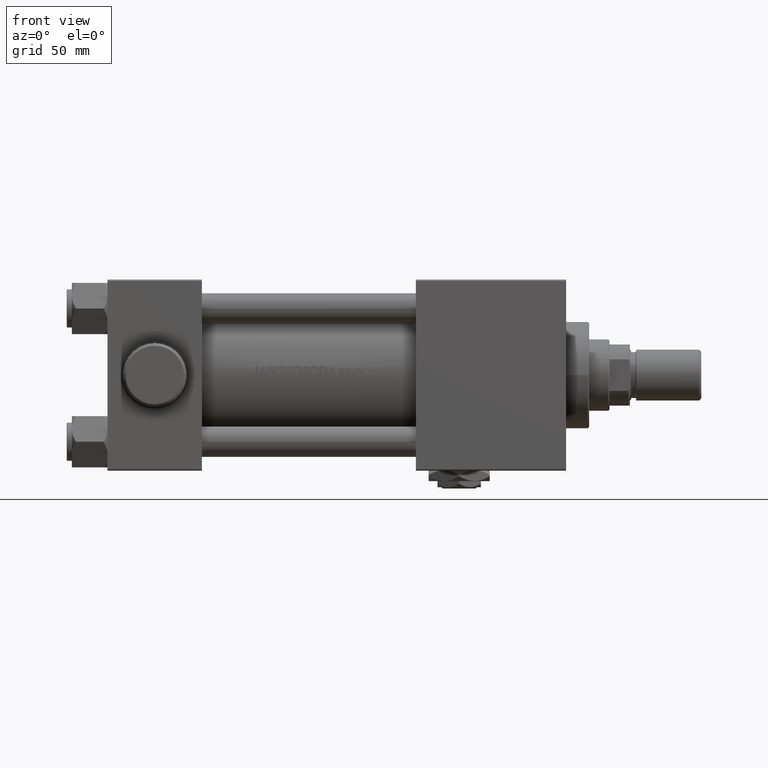
[diagram: clean part render]
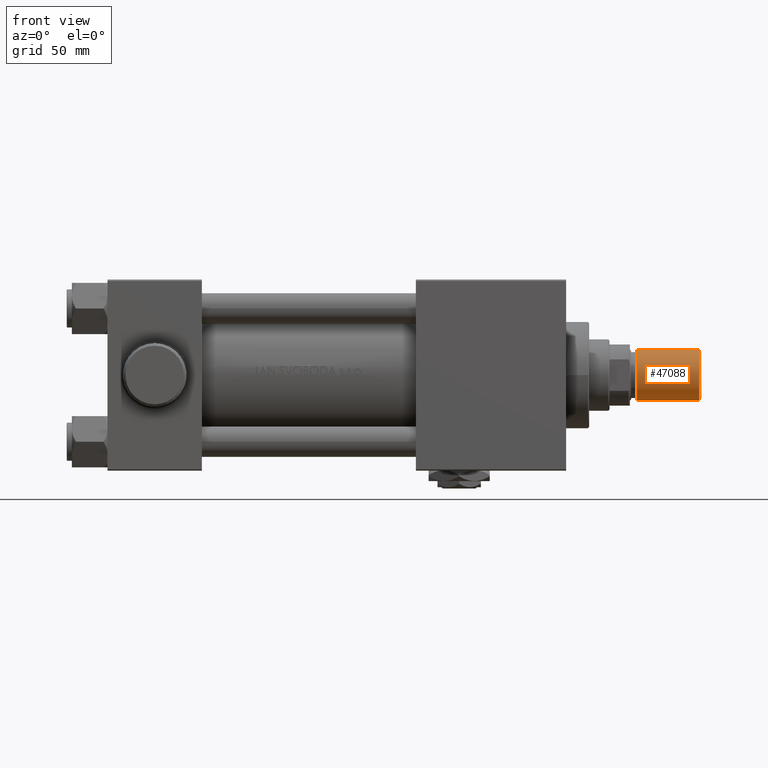
[diagram: same view with one face highlighted and labeled with its STEP entity id]
A machine part, front view. The second image highlights one B-rep face of the part: STEP entity #47088.
In plain terms, the highlighted cylindrical surface (edge-blend (fillet) strip) has radius 10 mm, axis along (1, -0, -0).
Its self-contained STEP definition (entity closure, byte-faithful):
#1362 = VERTEX_POINT ( 'NONE', #15504 ) ;
#1765 = EDGE_CURVE ( 'NONE', #46647, #27118, #47033, .T. ) ;
#3174 = DIRECTION ( 'NONE',  ( -0.000000000000000000, -0.000000000000000000, -1.000000000000000000 ) ) ;
#3437 = AXIS2_PLACEMENT_3D ( 'NONE', #9195, #4523, #12414 ) ;
#4523 = DIRECTION ( 'NONE',  ( -0.000000000000000000, -0.000000000000000000, -1.000000000000000000 ) ) ;
#8237 = CYLINDRICAL_SURFACE ( 'NONE', #3437, 10.00000000000000000 ) ;
#8248 = DIRECTION ( 'NONE',  ( 1.000000000000000000, 0.000000000000000000, 0.000000000000000000 ) ) ;
#9195 = CARTESIAN_POINT ( 'NONE',  ( 0.000000000000000000, 0.000000000000000000, 25.50000000000000000 ) ) ;
#11066 = ORIENTED_EDGE ( 'NONE', *, *, #29706, .T. ) ;
#12414 = DIRECTION ( 'NONE',  ( -1.000000000000000000, 0.000000000000000000, 0.000000000000000000 ) ) ;
#12503 = VECTOR ( 'NONE', #3174, 1000.000000000000000 ) ;
#12746 = ORIENTED_EDGE ( 'NONE', *, *, #43562, .T. ) ;
#13419 = CARTESIAN_POINT ( 'NONE',  ( 0.000000000000000000, 0.000000000000000000, 0.8000000000000055955 ) ) ;
#15504 = CARTESIAN_POINT ( 'NONE',  ( -10.00000000000000000, 0.000000000000000000, 0.8000000000000055955 ) ) ;
#15758 = ORIENTED_EDGE ( 'NONE', *, *, #38856, .F. ) ;
#20103 = FACE_OUTER_BOUND ( 'NONE', #29153, .T. ) ;
#21535 = AXIS2_PLACEMENT_3D ( 'NONE', #13419, #35989, #25813 ) ;
#22549 = AXIS2_PLACEMENT_3D ( 'NONE', #48880, #26356, #8248 ) ;
#24345 = CARTESIAN_POINT ( 'NONE',  ( 10.00000000000000000, 1.224646799147353256E-15, 25.50000000000000000 ) ) ;
#25813 = DIRECTION ( 'NONE',  ( 1.000000000000000000, 0.000000000000000000, 0.000000000000000000 ) ) ;
#26262 = VECTOR ( 'NONE', #42875, 1000.000000000000000 ) ;
#26356 = DIRECTION ( 'NONE',  ( 0.000000000000000000, 0.000000000000000000, 1.000000000000000000 ) ) ;
#27118 = VERTEX_POINT ( 'NONE', #24345 ) ;
#27764 = CARTESIAN_POINT ( 'NONE',  ( 10.00000000000000000, 1.224646799147353256E-15, 25.50000000000000000 ) ) ;
#28249 = LINE ( 'NONE', #27764, #26262 ) ;
#29153 = EDGE_LOOP ( 'NONE', ( #15758, #45319, #11066, #12746 ) ) ;
#29706 = EDGE_CURVE ( 'NONE', #46647, #1362, #40348, .T. ) ;
#31015 = CIRCLE ( 'NONE', #21535, 10.00000000000000000 ) ;
#31649 = VERTEX_POINT ( 'NONE', #36646 ) ;
#35989 = DIRECTION ( 'NONE',  ( -0.000000000000000000, -0.000000000000000000, 1.000000000000000000 ) ) ;
#36646 = CARTESIAN_POINT ( 'NONE',  ( 10.00000000000000000, 1.224646799147353256E-15, 0.8000000000000055955 ) ) ;
#37345 = CARTESIAN_POINT ( 'NONE',  ( -10.00000000000000000, 0.000000000000000000, 25.50000000000000000 ) ) ;
#38856 = EDGE_CURVE ( 'NONE', #27118, #31649, #28249, .T. ) ;
#40348 = LINE ( 'NONE', #41088, #12503 ) ;
#41088 = CARTESIAN_POINT ( 'NONE',  ( -10.00000000000000000, 0.000000000000000000, 25.50000000000000000 ) ) ;
#42875 = DIRECTION ( 'NONE',  ( -0.000000000000000000, -0.000000000000000000, -1.000000000000000000 ) ) ;
#43562 = EDGE_CURVE ( 'NONE', #1362, #31649, #31015, .T. ) ;
#45319 = ORIENTED_EDGE ( 'NONE', *, *, #1765, .F. ) ;
#46647 = VERTEX_POINT ( 'NONE', #37345 ) ;
#47033 = CIRCLE ( 'NONE', #22549, 10.00000000000000000 ) ;
#47088 = ADVANCED_FACE ( 'NONE', ( #20103 ), #8237, .T. ) ;
#48880 = CARTESIAN_POINT ( 'NONE',  ( 0.000000000000000000, 0.000000000000000000, 25.50000000000000000 ) ) ;